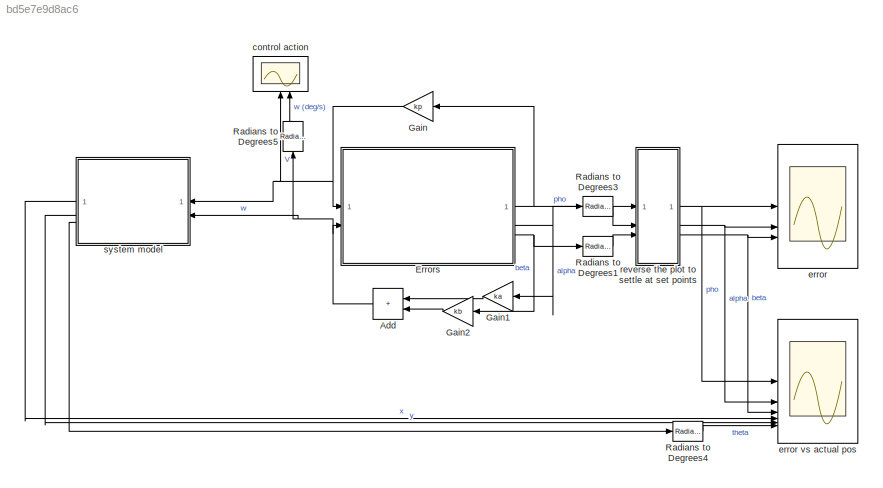
MODEL slx_bd5e7e9d8ac6
KIND model
CONFIG AbsTol = auto
CONFIG EnableMultiTasking = off
CONFIG FixedStep = auto
CONFIG MaxStep = auto
CONFIG MinStep = auto
CONFIG RelTol = 1e-3
CONFIG SampleTimeConstraint = Unconstrained
CONFIG SolverName = VariableStepAuto
CONFIG StartTime = 0.0
CONFIG StopTime = 10
WORKSPACE source: mxarray member
WORKSPACE Sig: Simulink.Signal (value not decoded)
BLOCK [Sum] Add
  IconShape = rectangular
  NameLocation = top
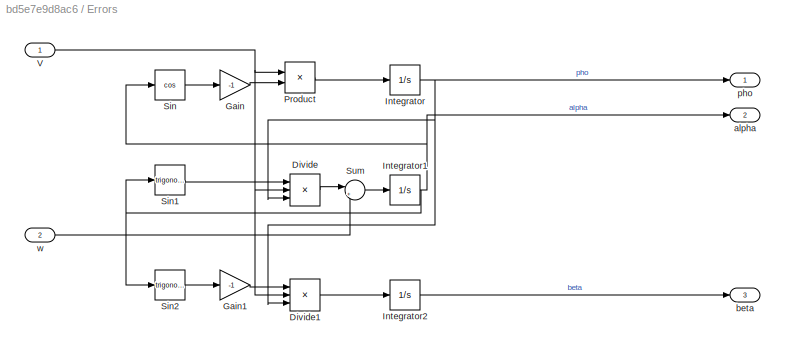
BLOCK [SubSystem] Errors
BLOCK [Product] Errors/Divide
  Inputs = **/
BLOCK [Product] Errors/Divide1
  Inputs = **/
BLOCK [Gain] Errors/Gain
  Gain = -1
BLOCK [Gain] Errors/Gain1
  Gain = -1
BLOCK [Integrator] Errors/Integrator
  InitialCondition = pho_i
BLOCK [Integrator] Errors/Integrator1
  InitialCondition = alpha_i
BLOCK [Integrator] Errors/Integrator2
  InitialCondition = beta_i
BLOCK [Product] Errors/Product
BLOCK [Trigonometry] Errors/Sin
  Operator = cos
BLOCK [Trigonometry] Errors/Sin1
BLOCK [Trigonometry] Errors/Sin2
BLOCK [Sum] Errors/Sum
  Inputs = |+-
BLOCK [Inport] Errors/V
BLOCK [Outport] Errors/alpha
  Port = 2
BLOCK [Outport] Errors/beta
  Port = 3
BLOCK [Outport] Errors/pho
BLOCK [Inport] Errors/w
  Port = 2
BLOCK [Gain] Gain
  Gain = kp
BLOCK [Gain] Gain1
  Gain = ka
BLOCK [Gain] Gain2
  Gain = kb
BLOCK [Reference] Radians to Degrees1  REF=simulink_extras/Transformations/Radians
to Degrees
  SourceBlock = simulink_extras/Transformations/Radians\nto Degrees
  SourceType = RadiansToDegrees
BLOCK [Reference] Radians to Degrees3  REF=simulink_extras/Transformations/Radians
to Degrees
  SourceBlock = simulink_extras/Transformations/Radians\nto Degrees
  SourceType = RadiansToDegrees
BLOCK [Reference] Radians to Degrees4  REF=simulink_extras/Transformations/Radians
to Degrees
  SourceBlock = simulink_extras/Transformations/Radians\nto Degrees
  SourceType = RadiansToDegrees
BLOCK [Reference] Radians to Degrees5  REF=simulink_extras/Transformations/Radians
to Degrees
  NameLocation = right
  SourceBlock = simulink_extras/Transformations/Radians\nto Degrees
  SourceType = RadiansToDegrees
BLOCK [Scope] control action
  Floating = off
  NameLocation = top
  NumInputPorts = 2
  ScopeSpecificationString = Simulink.scopes.TimeScopeBlockCfg('CurrentConfiguration', extmgr.ConfigurationSet(extmgr.Configuration('Core','General UI',true),extmgr.Configuration('Core','Source UI',true),extmgr.Configuration('Sources','WiredSimulink',true,'DataLoggingVariableName','ScopeData7'),extmgr.Configuration('Visuals','Time Domain',true,'SerializedDisplays',{struct('MinYLimReal','-312.5','MaxYLimReal','2812.5','YLabelR...<+2009ch>
BLOCK [Scope] error
  Floating = off
  NumInputPorts = 3
  ScopeSpecificationString = Simulink.scopes.TimeScopeBlockCfg('CurrentConfiguration', extmgr.ConfigurationSet(extmgr.Configuration('Core','General UI',true),extmgr.Configuration('Core','Source UI',true),extmgr.Configuration('Sources','WiredSimulink',true,'DataLoggingVariableName','ScopeData1'),extmgr.Configuration('Visuals','Time Domain',true,'SerializedDisplays',{struct('MinYLimReal','-62.5','MaxYLimReal','562.5','YLabelRea...<+2784ch>
BLOCK [Scope] error vs actual pos
  Floating = off
  NumInputPorts = 6
  ScopeSpecificationString = Simulink.scopes.TimeScopeBlockCfg('CurrentConfiguration', extmgr.ConfigurationSet(extmgr.Configuration('Core','General UI',true),extmgr.Configuration('Core','Source UI',true),extmgr.Configuration('Sources','WiredSimulink',true,'DataLoggingVariableName','ScopeData4'),extmgr.Configuration('Visuals','Time Domain',true,'SerializedDisplays',{struct('MinYLimReal','-14.83898','MaxYLimReal','133.5508','YL...<+4957ch>
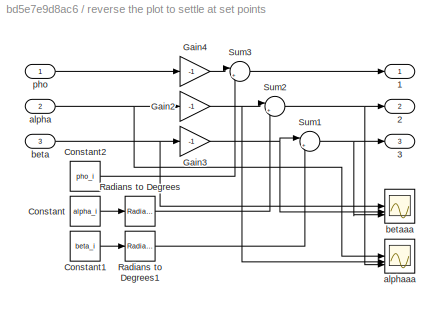
BLOCK [SubSystem] reverse the plot to settle at set points
  Commented = through
BLOCK [Outport] reverse the plot to settle at set points/1
BLOCK [Outport] reverse the plot to settle at set points/2
  Port = 2
BLOCK [Outport] reverse the plot to settle at set points/3
  Port = 3
BLOCK [Constant] reverse the plot to settle at set points/Constant
  Value = alpha_i
BLOCK [Constant] reverse the plot to settle at set points/Constant1
  Value = beta_i
BLOCK [Constant] reverse the plot to settle at set points/Constant2
  Value = pho_i
BLOCK [Gain] reverse the plot to settle at set points/Gain2
  Gain = -1
BLOCK [Gain] reverse the plot to settle at set points/Gain3
  Gain = -1
BLOCK [Gain] reverse the plot to settle at set points/Gain4
  Gain = -1
BLOCK [Reference] reverse the plot to settle at set points/Radians to Degrees  REF=simulink_extras/Transformations/Radians
to Degrees
  SourceBlock = simulink_extras/Transformations/Radians\nto Degrees
  SourceType = RadiansToDegrees
BLOCK [Reference] reverse the plot to settle at set points/Radians to Degrees1  REF=simulink_extras/Transformations/Radians
to Degrees
  SourceBlock = simulink_extras/Transformations/Radians\nto Degrees
  SourceType = RadiansToDegrees
BLOCK [Sum] reverse the plot to settle at set points/Sum1
  Inputs = |++
BLOCK [Sum] reverse the plot to settle at set points/Sum2
  Inputs = |++
BLOCK [Sum] reverse the plot to settle at set points/Sum3
  Inputs = |++
BLOCK [Inport] reverse the plot to settle at set points/alpha
  Port = 2
BLOCK [Scope] reverse the plot to settle at set points/alphaaa
  Floating = off
  NumInputPorts = 3
  ScopeSpecificationString = Simulink.scopes.TimeScopeBlockCfg('CurrentConfiguration', extmgr.ConfigurationSet(extmgr.Configuration('Core','General UI',true),extmgr.Configuration('Core','Source UI',true),extmgr.Configuration('Sources','WiredSimulink',true,'DataLoggingVariableName','ScopeData6'),extmgr.Configuration('Visuals','Time Domain',true,'SerializedDisplays',{struct('MinYLimReal','-16.1681','MaxYLimReal','57.35201','YLa...<+2733ch>
BLOCK [Inport] reverse the plot to settle at set points/beta
  Port = 3
BLOCK [Scope] reverse the plot to settle at set points/betaaa
  Floating = off
  NumInputPorts = 3
  ScopeSpecificationString = Simulink.scopes.TimeScopeBlockCfg('CurrentConfiguration', extmgr.ConfigurationSet(extmgr.Configuration('Core','General UI',true),extmgr.Configuration('Core','Source UI',true),extmgr.Configuration('Sources','WiredSimulink',true,'DataLoggingVariableName','ScopeData5'),extmgr.Configuration('Visuals','Time Domain',true,'SerializedDisplays',{struct('MinYLimReal','-56.1027','MaxYLimReal','6.23363','YLab...<+2739ch>
BLOCK [Inport] reverse the plot to settle at set points/pho
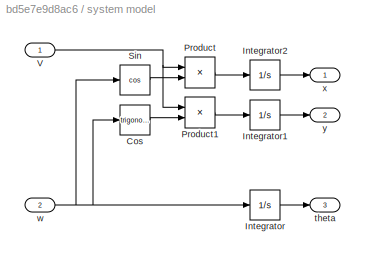
BLOCK [SubSystem] system model
BLOCK [Trigonometry] system model/Cos
BLOCK [Integrator] system model/Integrator
BLOCK [Integrator] system model/Integrator1
BLOCK [Integrator] system model/Integrator2
BLOCK [Product] system model/Product
BLOCK [Product] system model/Product1
BLOCK [Trigonometry] system model/Sin
  Operator = cos
BLOCK [Inport] system model/V
BLOCK [Outport] system model/theta
  Port = 3
BLOCK [Inport] system model/w
  Port = 2
BLOCK [Outport] system model/x
BLOCK [Outport] system model/y
  Port = 2
NET Add:1 -> Errors:2, Radians to Degrees5:1, system model:2
LINE Errors/Divide1:1 -> Errors/Integrator2:1
LINE Errors/Divide:1 -> Errors/Sum:1
LINE Errors/Gain1:1 -> Errors/Divide1:1
LINE Errors/Gain:1 -> Errors/Product:2
NET Errors/Integrator1:1 -> Errors/Sin1:1, Errors/Sin2:1, Errors/Sin:1, Errors/alpha:1
LINE Errors/Integrator2:1 -> Errors/beta:1
NET Errors/Integrator:1 -> Errors/Divide1:3, Errors/Divide:3, Errors/pho:1
LINE Errors/Product:1 -> Errors/Integrator:1
LINE Errors/Sin1:1 -> Errors/Divide:1
LINE Errors/Sin2:1 -> Errors/Gain1:1
LINE Errors/Sin:1 -> Errors/Gain:1
LINE Errors/Sum:1 -> Errors/Integrator1:1
NET Errors/V:1 -> Errors/Divide1:2, Errors/Divide:2, Errors/Product:1
LINE Errors/w:1 -> Errors/Sum:2
NET Errors:1 -> Gain:1, reverse the plot to settle at set points:1
NET Errors:2 -> Gain1:1, Radians to Degrees3:1
NET Errors:3 -> Gain2:1, Radians to Degrees1:1
LINE Gain1:1 -> Add:1
LINE Gain2:1 -> Add:2
NET Gain:1 -> Errors:1, control action:1, system model:1
LINE Radians to Degrees1:1 -> reverse the plot to settle at set points:3
LINE Radians to Degrees3:1 -> reverse the plot to settle at set points:2
LINE Radians to Degrees4:1 -> error vs actual pos:6
LINE Radians to Degrees5:1 -> control action:2
LINE reverse the plot to settle at set points/Constant1:1 -> reverse the plot to settle at set points/Radians to Degrees1:1
LINE reverse the plot to settle at set points/Constant2:1 -> reverse the plot to settle at set points/Sum3:2
LINE reverse the plot to settle at set points/Constant:1 -> reverse the plot to settle at set points/Radians to Degrees:1
NET reverse the plot to settle at set points/Gain2:1 -> reverse the plot to settle at set points/Sum2:1, reverse the plot to settle at set points/alphaaa:2
NET reverse the plot to settle at set points/Gain3:1 -> reverse the plot to settle at set points/Sum1:1, reverse the plot to settle at set points/betaaa:2
LINE reverse the plot to settle at set points/Gain4:1 -> reverse the plot to settle at set points/Sum3:1
LINE reverse the plot to settle at set points/Radians to Degrees1:1 -> reverse the plot to settle at set points/Sum1:2
LINE reverse the plot to settle at set points/Radians to Degrees:1 -> reverse the plot to settle at set points/Sum2:2
NET reverse the plot to settle at set points/Sum1:1 -> reverse the plot to settle at set points/3:1, reverse the plot to settle at set points/betaaa:3
NET reverse the plot to settle at set points/Sum2:1 -> reverse the plot to settle at set points/2:1, reverse the plot to settle at set points/alphaaa:3
LINE reverse the plot to settle at set points/Sum3:1 -> reverse the plot to settle at set points/1:1
NET reverse the plot to settle at set points/alpha:1 -> reverse the plot to settle at set points/Gain2:1, reverse the plot to settle at set points/alphaaa:1
NET reverse the plot to settle at set points/beta:1 -> reverse the plot to settle at set points/Gain3:1, reverse the plot to settle at set points/betaaa:1
LINE reverse the plot to settle at set points/pho:1 -> reverse the plot to settle at set points/Gain4:1
NET reverse the plot to settle at set points:1 -> error vs actual pos:1, error:1
NET reverse the plot to settle at set points:2 -> error vs actual pos:2, error:2
NET reverse the plot to settle at set points:3 -> error vs actual pos:3, error:3
LINE system model/Cos:1 -> system model/Product1:2
LINE system model/Integrator1:1 -> system model/y:1
LINE system model/Integrator2:1 -> system model/x:1
LINE system model/Integrator:1 -> system model/theta:1
LINE system model/Product1:1 -> system model/Integrator1:1
LINE system model/Product:1 -> system model/Integrator2:1
LINE system model/Sin:1 -> system model/Product:2
NET system model/V:1 -> system model/Product1:1, system model/Product:1
NET system model/w:1 -> system model/Cos:1, system model/Integrator:1, system model/Sin:1
LINE system model:1 -> error vs actual pos:4
LINE system model:2 -> error vs actual pos:5
LINE system model:3 -> Radians to Degrees4:1
note: NET lines group one-source signal fan-out (src -> all destinations, sorted); 1:1 wires keep LINE
